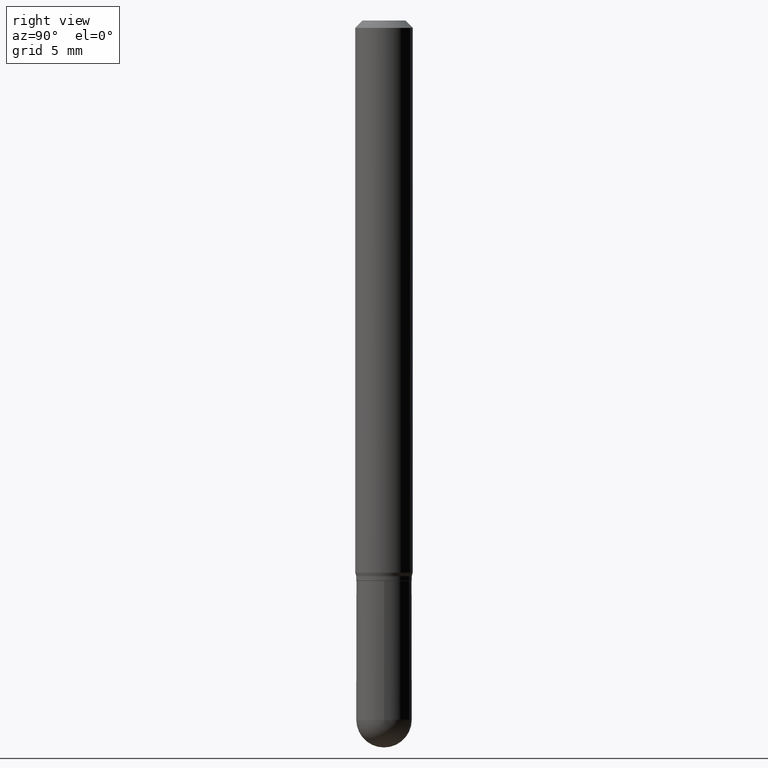
[diagram: clean part render]
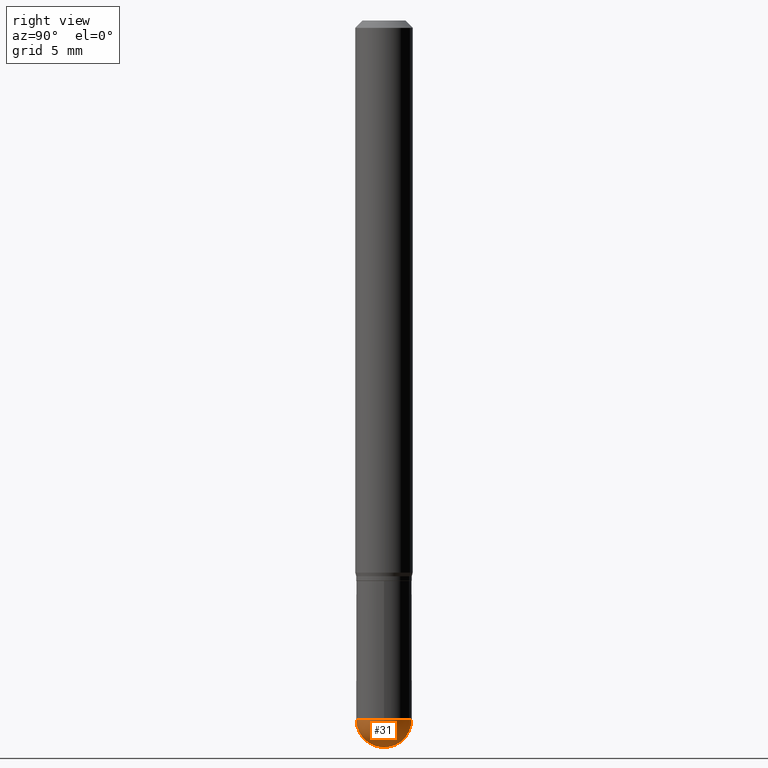
[diagram: same view with one face highlighted and labeled with its STEP entity id]
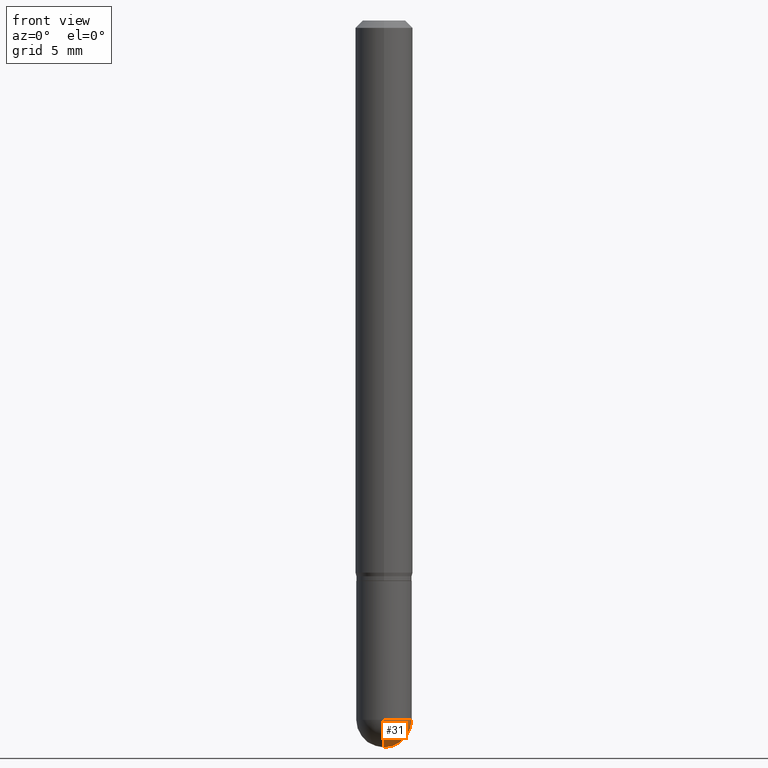
[diagram: same view with one face highlighted and labeled with its STEP entity id]
A machine part, right view. The second image highlights one B-rep face of the part: STEP entity #31.
A second angle (front view) of the same face is appended — the face is thin or edge-on in the first view.
In plain terms, the highlighted spherical surface has radius 1.4503 mm.
Its self-contained STEP definition (entity closure, byte-faithful):
#14 = CARTESIAN_POINT ( 'NONE',  ( 3.519029612100411141E-29, -5.024241646595286064E-15, -1.438999999999999835 ) ) ;
#31 = ADVANCED_FACE ( 'NONE', ( #298 ), #457, .T. ) ;
#41 = VERTEX_POINT ( 'NONE', #280 ) ;
#48 = VERTEX_POINT ( 'NONE', #77 ) ;
#56 = ORIENTED_EDGE ( 'NONE', *, *, #496, .F. ) ;
#62 = CARTESIAN_POINT ( 'NONE',  ( 3.514146612589196939E-29, -5.031234379818417148E-15, -1.438999999999999835 ) ) ;
#69 = EDGE_LOOP ( 'NONE', ( #444, #111, #56, #247 ) ) ;
#73 = AXIS2_PLACEMENT_3D ( 'NONE', #14, #176, #229 ) ;
#77 = CARTESIAN_POINT ( 'NONE',  ( -3.987271688958507568E-16, -0.05710000000000504256, -1.438999999999999613 ) ) ;
#79 = CIRCLE ( 'NONE', #374, 0.05710000000000002573 ) ;
#98 = EDGE_CURVE ( 'NONE', #435, #48, #79, .T. ) ;
#111 = ORIENTED_EDGE ( 'NONE', *, *, #180, .T. ) ;
#142 = AXIS2_PLACEMENT_3D ( 'NONE', #62, #365, #276 ) ;
#144 = EDGE_CURVE ( 'NONE', #48, #404, #427, .T. ) ;
#158 = CARTESIAN_POINT ( 'NONE',  ( 3.514146612589196939E-29, -5.031234379818417148E-15, -1.438999999999999835 ) ) ;
#176 = DIRECTION ( 'NONE',  ( -2.445468806185136597E-29, 3.491481338843145583E-15, 1.000000000000000000 ) ) ;
#180 = EDGE_CURVE ( 'NONE', #435, #41, #262, .T. ) ;
#200 = DIRECTION ( 'NONE',  ( 7.105427357601001070E-15, 1.000000000000000000, 0.000000000000000000 ) ) ;
#206 = CARTESIAN_POINT ( 'NONE',  ( 3.519029612100411141E-29, -5.024241646595286064E-15, -1.438999999999999835 ) ) ;
#221 = CARTESIAN_POINT ( 'NONE',  ( 3.651341381666760805E-29, -5.234094330877927075E-15, -1.496099999999999985 ) ) ;
#229 = DIRECTION ( 'NONE',  ( 1.000000000000000000, -6.982962677686259611E-15, 0.000000000000000000 ) ) ;
#237 = DIRECTION ( 'NONE',  ( -6.982962677686265922E-15, -1.000000000000000000, 0.000000000000000000 ) ) ;
#246 = DIRECTION ( 'NONE',  ( 1.000000000000000000, -6.982962677686259611E-15, 0.000000000000000000 ) ) ;
#247 = ORIENTED_EDGE ( 'NONE', *, *, #144, .F. ) ;
#262 = CIRCLE ( 'NONE', #397, 0.05710000000000002573 ) ;
#276 = DIRECTION ( 'NONE',  ( -6.982962677686265922E-15, -1.000000000000000000, 4.784322230585397112E-15 ) ) ;
#279 = CARTESIAN_POINT ( 'NONE',  ( 3.514146612589196939E-29, -5.031234379818417148E-15, -1.438999999999999835 ) ) ;
#280 = CARTESIAN_POINT ( 'NONE',  ( 4.057199021190523947E-16, 0.05709999999999498116, -1.439000000000000057 ) ) ;
#298 = FACE_OUTER_BOUND ( 'NONE', #69, .T. ) ;
#365 = DIRECTION ( 'NONE',  ( 1.000000000000000000, -6.982962677686265922E-15, 4.883557194083112901E-29 ) ) ;
#374 = AXIS2_PLACEMENT_3D ( 'NONE', #158, #434, #237 ) ;
#392 = DIRECTION ( 'NONE',  ( -2.445468806185136597E-29, 3.491481338843145583E-15, 1.000000000000000000 ) ) ;
#397 = AXIS2_PLACEMENT_3D ( 'NONE', #279, #428, #200 ) ;
#404 = VERTEX_POINT ( 'NONE', #442 ) ;
#419 = CIRCLE ( 'NONE', #451, 0.05709999999999999798 ) ;
#427 = CIRCLE ( 'NONE', #73, 0.05709999999999999798 ) ;
#428 = DIRECTION ( 'NONE',  ( 1.000000000000000000, -7.105427357601001070E-15, 4.926315508542082329E-29 ) ) ;
#434 = DIRECTION ( 'NONE',  ( -1.000000000000000000, 6.982962677686265922E-15, -4.883557194083112340E-29 ) ) ;
#435 = VERTEX_POINT ( 'NONE', #221 ) ;
#442 = CARTESIAN_POINT ( 'NONE',  ( 0.05709999999999999798, -4.924734428438255627E-15, -1.438999999999999835 ) ) ;
#444 = ORIENTED_EDGE ( 'NONE', *, *, #98, .F. ) ;
#451 = AXIS2_PLACEMENT_3D ( 'NONE', #206, #392, #246 ) ;
#457 = SPHERICAL_SURFACE ( 'NONE', #142, 0.05710000000000002573 ) ;
#496 = EDGE_CURVE ( 'NONE', #404, #41, #419, .T. ) ;